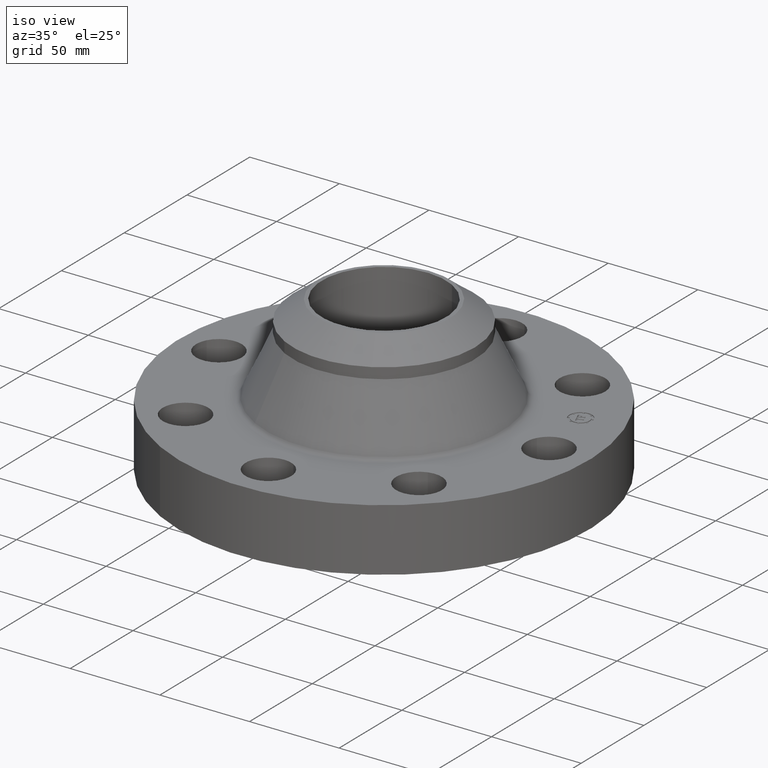
[diagram: clean part render]
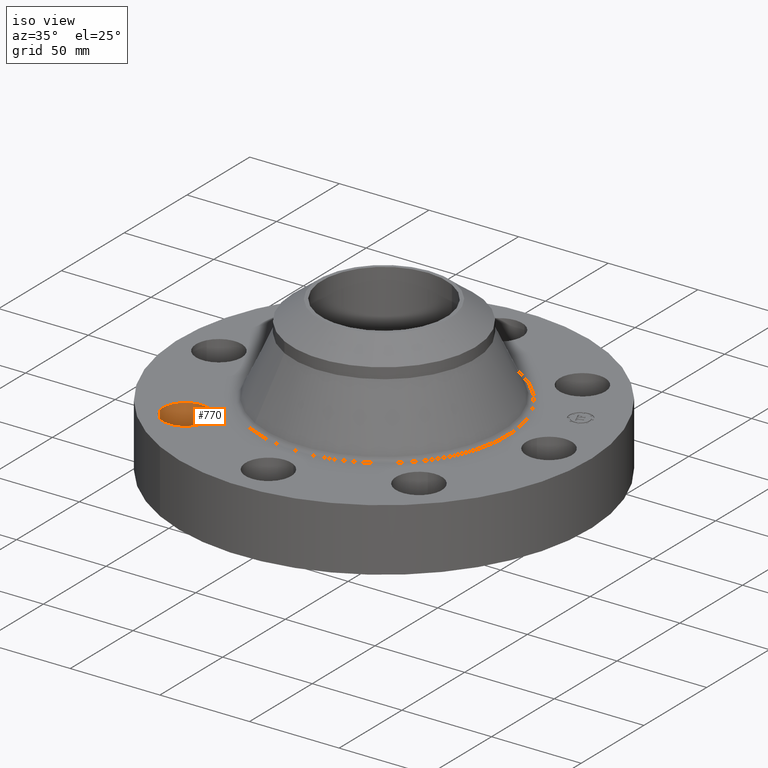
[diagram: same view with one face highlighted and labeled with its STEP entity id]
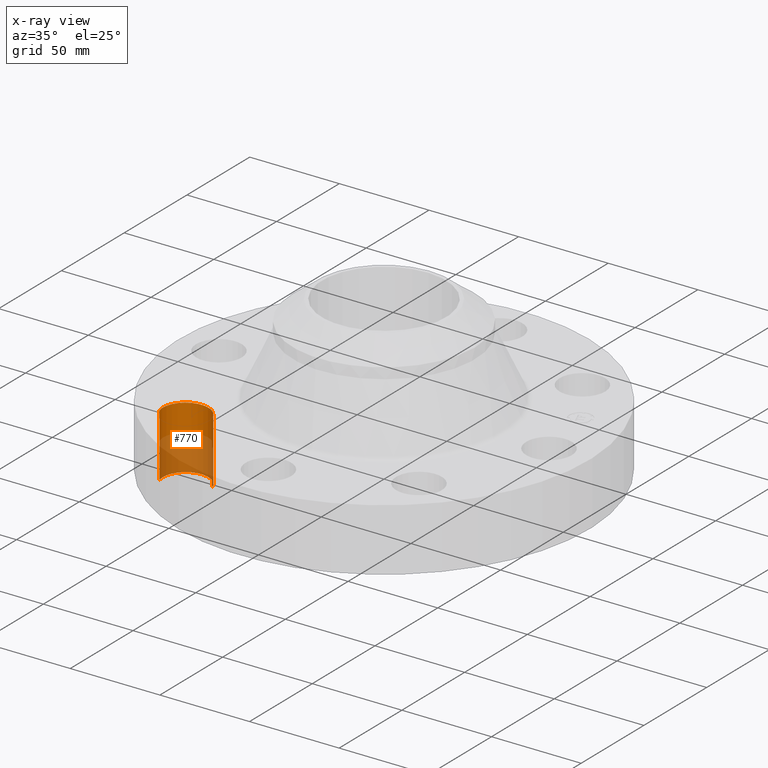
[diagram: x-ray of the same camera — body ghosted, the highlighted face saturated]
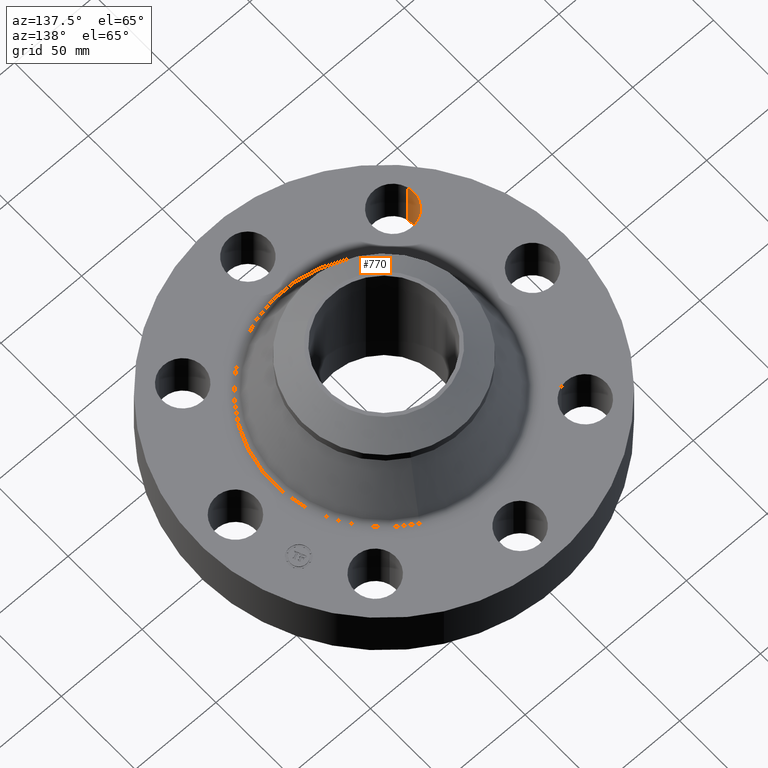
[diagram: same view with one face highlighted and labeled with its STEP entity id]
A machine part, iso view. The second image highlights one B-rep face of the part: STEP entity #770.
The next image is the same camera in x-ray: the body ghosted, the highlighted face saturated — about 57% of this face is hidden behind the body in this view.
A second angle (auxiliary view) of the same face is appended — the face is thin or edge-on in the first view.
In plain terms, the highlighted cylindrical surface (edge-blend (fillet) strip) has radius 12.7 mm, axis along (-0, 0, -1).
Its self-contained STEP definition (entity closure, byte-faithful):
#228=AXIS2_PLACEMENT_3D('Circle Axis2P3D',#226,#227,$) ;
#398=AXIS2_PLACEMENT_3D('Circle Axis2P3D',#396,#397,$) ;
#762=AXIS2_PLACEMENT_3D('Cylinder Axis2P3D',#759,#760,#761) ;
#221=CARTESIAN_POINT('Vertex',(-2.08348726685,-2.42249231625,0.)) ;
#223=CARTESIAN_POINT('Vertex',(-3.04303689684,-2.70403184738,0.)) ;
#226=CARTESIAN_POINT('Axis2P3D Location',(-2.56326208185,-2.56326208179,0.)) ;
#396=CARTESIAN_POINT('Axis2P3D Location',(-2.56326208185,-2.56326208179,1.38000000001)) ;
#400=CARTESIAN_POINT('Vertex',(-3.0430368968,-2.70403184738,1.37999999999)) ;
#402=CARTESIAN_POINT('Vertex',(-2.08348726682,-2.42249231624,1.37999999999)) ;
#735=CARTESIAN_POINT('Line Origine',(-2.08348726682,-2.42249231624,0.690000000005)) ;
#740=CARTESIAN_POINT('Line Origine',(-3.0430368968,-2.70403184738,0.690000000005)) ;
#759=CARTESIAN_POINT('Axis2P3D Location',(-2.56326208181,-2.56326208181,1.37606299213)) ;
#227=DIRECTION('Axis2P3D Direction',(0.,0.,-0.0393700787402)) ;
#397=DIRECTION('Axis2P3D Direction',(0.,0.,-0.0393700787402)) ;
#736=DIRECTION('Vector Direction',(0.,0.,-0.0393700787402)) ;
#741=DIRECTION('Vector Direction',(0.,0.,-0.0393700787402)) ;
#760=DIRECTION('Axis2P3D Direction',(-0.,0.,-0.0393700787402)) ;
#761=DIRECTION('Axis2P3D XDirection',(-0.0377775444876,-0.0110842335096,0.)) ;
#737=VECTOR('Line Direction',#736,0.0393700787402) ;
#742=VECTOR('Line Direction',#741,0.0393700787402) ;
#765=ORIENTED_EDGE('',*,*,#744,.F.) ;
#766=ORIENTED_EDGE('',*,*,#230,.T.) ;
#767=ORIENTED_EDGE('',*,*,#739,.T.) ;
#768=ORIENTED_EDGE('',*,*,#404,.F.) ;
#770=ADVANCED_FACE('PartBody',(#769),#763,.F.) ;
#229=CIRCLE('generated circle',#228,0.5) ;
#399=CIRCLE('generated circle',#398,0.5) ;
#763=CYLINDRICAL_SURFACE('generated cylinder',#762,0.500000000002) ;
#230=EDGE_CURVE('',#224,#222,#229,.T.) ;
#404=EDGE_CURVE('',#401,#403,#399,.T.) ;
#739=EDGE_CURVE('',#222,#403,#738,.F.) ;
#744=EDGE_CURVE('',#224,#401,#743,.F.) ;
#764=EDGE_LOOP('',(#765,#766,#767,#768)) ;
#769=FACE_OUTER_BOUND('',#764,.T.) ;
#738=LINE('Line',#735,#737) ;
#743=LINE('Line',#740,#742) ;
#222=VERTEX_POINT('',#221) ;
#224=VERTEX_POINT('',#223) ;
#401=VERTEX_POINT('',#400) ;
#403=VERTEX_POINT('',#402) ;